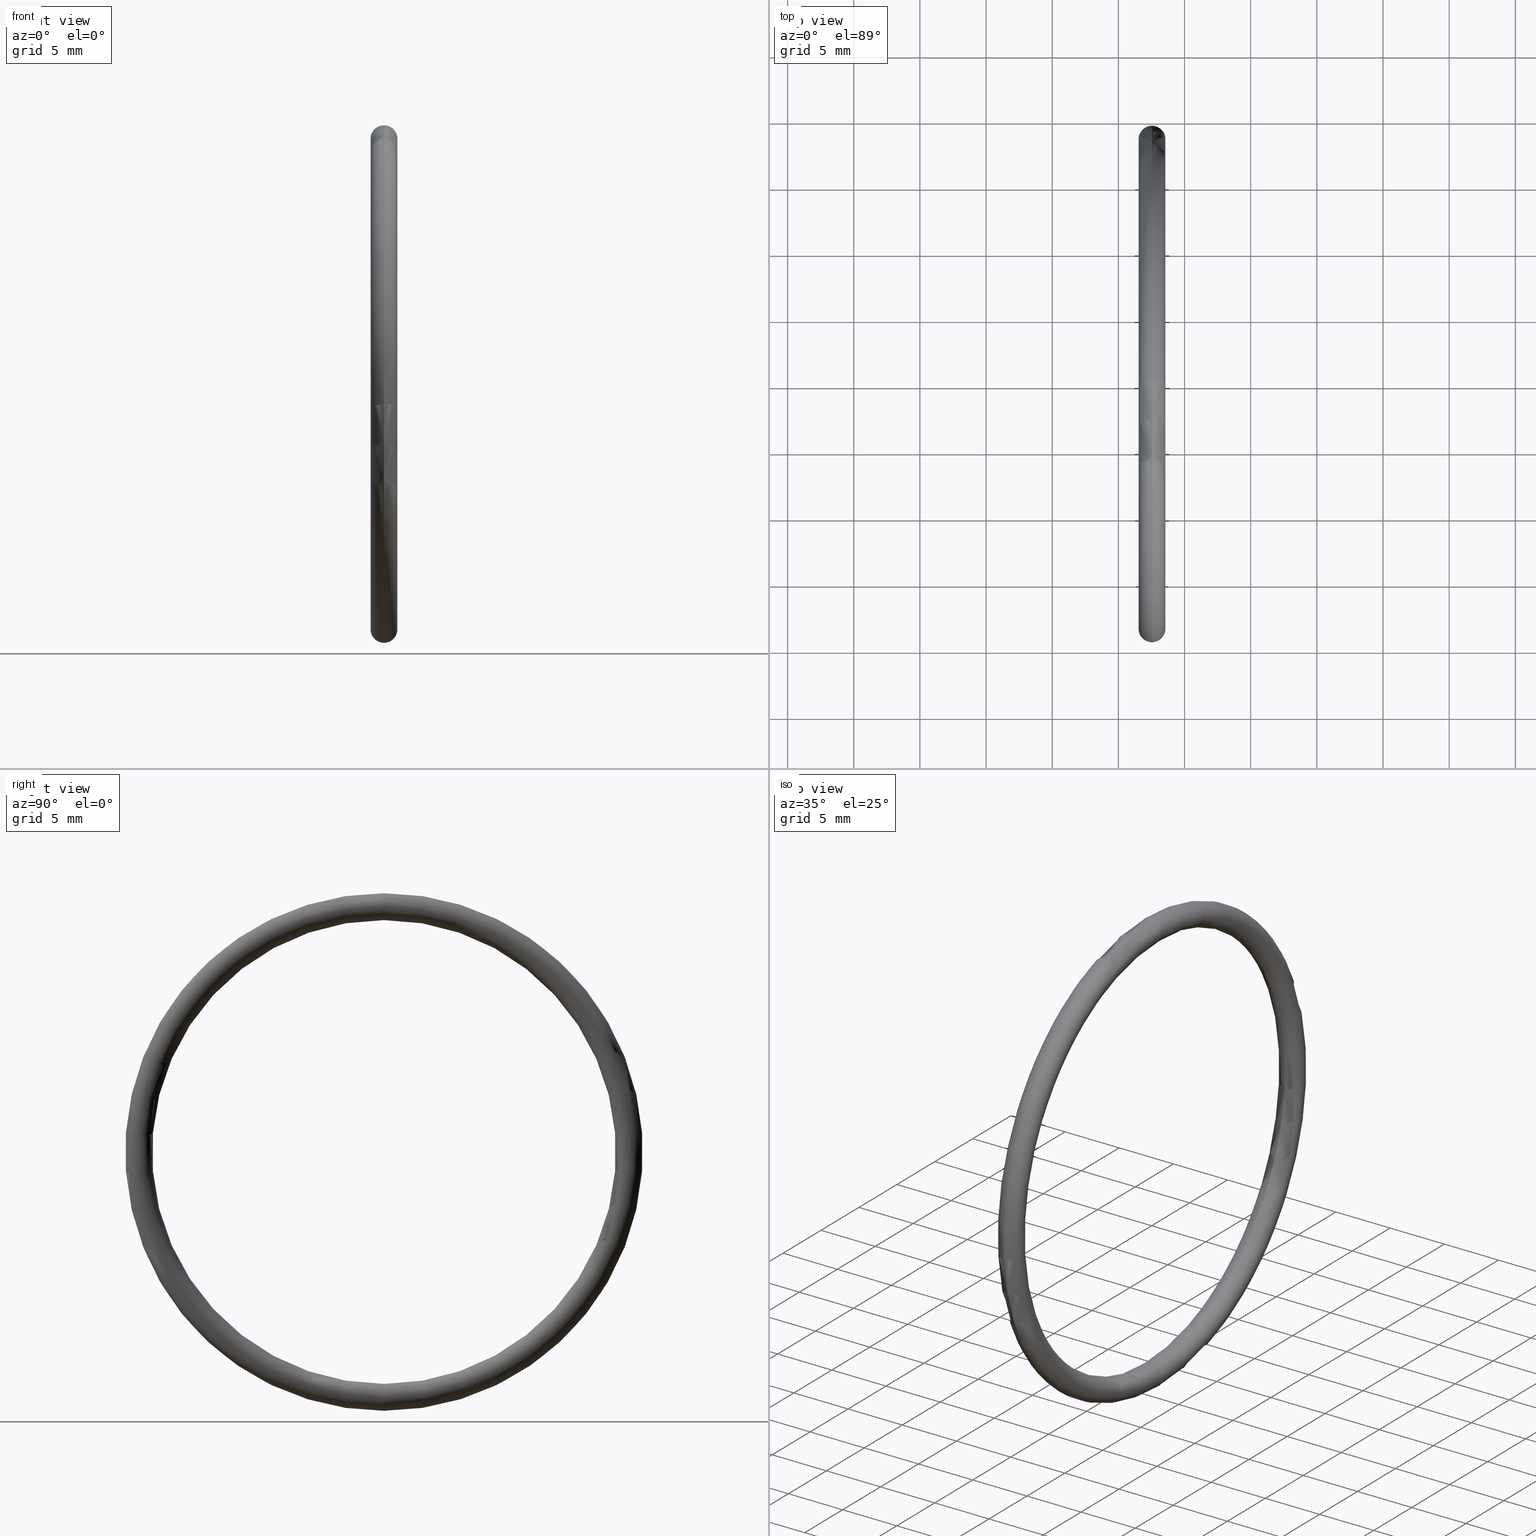
[diagram: canonical four-view strip — front | top / right | iso, engineering-drawing reading convention]
A machine part, canonical four-view strip (front | top / right | iso — engineering-drawing reading convention). The complete STEP part file that produces these views, byte-faithful:
ISO-10303-21;
HEADER;
FILE_DESCRIPTION (( 'STEP AP203' ),
    '1' );
FILE_NAME ('OM-40-BN.STEP',
    '2008-03-29T08:05:04',
    ( 'Baystate-05' ),
    ( 'BayState InfoTech' ),
    'SwSTEP 2.0',
    'SolidWorks 2007',
    '' );
FILE_SCHEMA (( 'CONFIG_CONTROL_DESIGN' ));
ENDSEC;

DATA;
#1 = ADVANCED_FACE ( 'NONE', ( #38 ), #40, .T. ) ;
#2 = EDGE_LOOP ( 'NONE', ( #16, #5, #7, #4 ) ) ;
#3 = CLOSED_SHELL ( 'NONE', ( #29, #30, #24, #1 ) ) ;
#4 = ORIENTED_EDGE ( 'NONE', *, *, #15, .T. ) ;
#5 = ORIENTED_EDGE ( 'NONE', *, *, #17, .F. ) ;
#6 = EDGE_LOOP ( 'NONE', ( #13, #12, #36, #31 ) ) ;
#7 = ORIENTED_EDGE ( 'NONE', *, *, #32, .T. ) ;
#8 = VERTEX_POINT ( 'NONE', #41 ) ;
#9 = MANIFOLD_SOLID_BREP ( 'NONE', #3 ) ;
#10 = EDGE_CURVE ( 'NONE', #11, #8, #48, .T. ) ;
#11 = VERTEX_POINT ( 'NONE', #56 ) ;
#12 = ORIENTED_EDGE ( 'NONE', *, *, #35, .T. ) ;
#13 = ORIENTED_EDGE ( 'NONE', *, *, #10, .F. ) ;
#14 = ORIENTED_EDGE ( 'NONE', *, *, #15, .F. ) ;
#15 = EDGE_CURVE ( 'NONE', #28, #37, #54, .T. ) ;
#16 = ORIENTED_EDGE ( 'NONE', *, *, #35, .F. ) ;
#17 = EDGE_CURVE ( 'NONE', #8, #11, #61, .T. ) ;
#18 = ORIENTED_EDGE ( 'NONE', *, *, #17, .T. ) ;
#19 = ORIENTED_EDGE ( 'NONE', *, *, #23, .T. ) ;
#20 = ORIENTED_EDGE ( 'NONE', *, *, #33, .F. ) ;
#21 = EDGE_LOOP ( 'NONE', ( #20, #14, #19, #18 ) ) ;
#22 = ORIENTED_EDGE ( 'NONE', *, *, #23, .F. ) ;
#23 = EDGE_CURVE ( 'NONE', #28, #8, #184, .T. ) ;
#24 = ADVANCED_FACE ( 'NONE', ( #189 ), #79, .T. ) ;
#25 = ORIENTED_EDGE ( 'NONE', *, *, #27, .F. ) ;
#26 = EDGE_LOOP ( 'NONE', ( #25, #39, #34, #22 ) ) ;
#27 = EDGE_CURVE ( 'NONE', #37, #28, #113, .T. ) ;
#28 = VERTEX_POINT ( 'NONE', #192 ) ;
#29 = ADVANCED_FACE ( 'NONE', ( #191 ), #101, .T. ) ;
#30 = ADVANCED_FACE ( 'NONE', ( #82 ), #80, .T. ) ;
#31 = ORIENTED_EDGE ( 'NONE', *, *, #32, .F. ) ;
#32 = EDGE_CURVE ( 'NONE', #8, #28, #92, .T. ) ;
#33 = EDGE_CURVE ( 'NONE', #37, #11, #110, .T. ) ;
#34 = ORIENTED_EDGE ( 'NONE', *, *, #10, .T. ) ;
#35 = EDGE_CURVE ( 'NONE', #11, #37, #105, .T. ) ;
#36 = ORIENTED_EDGE ( 'NONE', *, *, #27, .T. ) ;
#37 = VERTEX_POINT ( 'NONE', #94 ) ;
#38 = FACE_OUTER_BOUND ( 'NONE', #2, .T. ) ;
#39 = ORIENTED_EDGE ( 'NONE', *, *, #33, .T. ) ;
#40 = TOROIDAL_SURFACE ( 'NONE', #44, 0.7299999999999998700, 0.03999999999999997300 ) ;
#41 = CARTESIAN_POINT ( 'NONE',  ( 0.1000000000000000900, 8.450062914116736900E-017, -0.6899999999999998400 ) ) ;
#42 = DIRECTION ( 'NONE',  ( 0.0000000000000000000, 0.0000000000000000000, 1.000000000000000000 ) ) ;
#43 = DIRECTION ( 'NONE',  ( -1.000000000000000000, 0.0000000000000000000, 0.0000000000000000000 ) ) ;
#44 = AXIS2_PLACEMENT_3D ( 'NONE', #45, #43, #42 ) ;
#45 = CARTESIAN_POINT ( 'NONE',  ( 0.1000000000000000900, 0.0000000000000000000, 0.0000000000000000000 ) ) ;
#46 = CARTESIAN_POINT ( 'NONE',  ( 0.1000000000000000900, 8.939921633775677100E-017, -0.7299999999999998700 ) ) ;
#47 = AXIS2_PLACEMENT_3D ( 'NONE', #46, #49, #57 ) ;
#48 = CIRCLE ( 'NONE', #47, 0.03999999999999998000 ) ;
#49 = DIRECTION ( 'NONE',  ( 0.0000000000000000000, 1.000000000000000000, 1.224646799147353200E-016 ) ) ;
#50 = DIRECTION ( 'NONE',  ( 0.0000000000000000000, -1.224646799147351000E-016, 1.000000000000000000 ) ) ;
#51 = DIRECTION ( 'NONE',  ( 0.0000000000000000000, 1.000000000000000000, 1.224646799147353200E-016 ) ) ;
#52 = AXIS2_PLACEMENT_3D ( 'NONE', #60, #51, #50 ) ;
#53 = AXIS2_PLACEMENT_3D ( 'NONE', #55, #59, #58 ) ;
#54 = CIRCLE ( 'NONE', #53, 0.03999999999999998000 ) ;
#55 = CARTESIAN_POINT ( 'NONE',  ( 0.1000000000000000900, 0.0000000000000000000, 0.7299999999999998700 ) ) ;
#56 = CARTESIAN_POINT ( 'NONE',  ( 0.1000000000000000900, 9.429780353434617300E-017, -0.7699999999999996800 ) ) ;
#57 = DIRECTION ( 'NONE',  ( 0.0000000000000000000, -1.224646799147351000E-016, 1.000000000000000000 ) ) ;
#58 = DIRECTION ( 'NONE',  ( 0.0000000000000000000, 0.0000000000000000000, -1.000000000000000000 ) ) ;
#59 = DIRECTION ( 'NONE',  ( 0.0000000000000000000, -1.000000000000000000, 0.0000000000000000000 ) ) ;
#60 = CARTESIAN_POINT ( 'NONE',  ( 0.1000000000000000900, 8.939921633775677100E-017, -0.7299999999999998700 ) ) ;
#61 = CIRCLE ( 'NONE', #52, 0.03999999999999998000 ) ;
#62 = CC_DESIGN_DATE_AND_TIME_ASSIGNMENT ( #64, #63, ( #123 ) ) ;
#63 = DATE_TIME_ROLE ( 'creation_date' ) ;
#64 = DATE_AND_TIME ( #65, #66 ) ;
#65 = CALENDAR_DATE ( 2008, 29, 3 ) ;
#66 = LOCAL_TIME ( 13, 35, 4.000000000000000000, #67 ) ;
#67 = COORDINATED_UNIVERSAL_TIME_OFFSET ( 5, 30, .AHEAD. ) ;
#68 = CC_DESIGN_PERSON_AND_ORGANIZATION_ASSIGNMENT ( #70, #69, ( #123 ) ) ;
#69 = PERSON_AND_ORGANIZATION_ROLE ( 'creator' ) ;
#70 = PERSON_AND_ORGANIZATION ( #131, #130 ) ;
#71 = CC_DESIGN_APPROVAL ( #120, ( #123 ) ) ;
#72 = APPROVAL_DATE_TIME ( #73, #120 ) ;
#73 = DATE_AND_TIME ( #74, #75 ) ;
#74 = CALENDAR_DATE ( 2008, 29, 3 ) ;
#75 = LOCAL_TIME ( 13, 35, 4.000000000000000000, #76 ) ;
#76 = COORDINATED_UNIVERSAL_TIME_OFFSET ( 5, 30, .AHEAD. ) ;
#77 = APPROVAL_PERSON_ORGANIZATION ( #122, #120, #78 ) ;
#78 = APPROVAL_ROLE ( '' ) ;
#79 = TOROIDAL_SURFACE ( 'NONE', #119, 0.7299999999999998700, 0.03999999999999997300 ) ;
#80 = TOROIDAL_SURFACE ( 'NONE', #81, 0.7299999999999998700, 0.03999999999999997300 ) ;
#81 = AXIS2_PLACEMENT_3D ( 'NONE', #87, #86, #85 ) ;
#82 = FACE_OUTER_BOUND ( 'NONE', #26, .T. ) ;
#83 = DIRECTION ( 'NONE',  ( 0.0000000000000000000, 0.0000000000000000000, 1.000000000000000000 ) ) ;
#84 = DIRECTION ( 'NONE',  ( 0.0000000000000000000, 0.0000000000000000000, 1.000000000000000000 ) ) ;
#85 = DIRECTION ( 'NONE',  ( 0.0000000000000000000, 0.0000000000000000000, 1.000000000000000000 ) ) ;
#86 = DIRECTION ( 'NONE',  ( -1.000000000000000000, 0.0000000000000000000, 0.0000000000000000000 ) ) ;
#87 = CARTESIAN_POINT ( 'NONE',  ( 0.1000000000000000900, 0.0000000000000000000, 0.0000000000000000000 ) ) ;
#88 = DIRECTION ( 'NONE',  ( 0.0000000000000000000, 0.0000000000000000000, 1.000000000000000000 ) ) ;
#89 = DIRECTION ( 'NONE',  ( -1.000000000000000000, 0.0000000000000000000, 0.0000000000000000000 ) ) ;
#90 = CARTESIAN_POINT ( 'NONE',  ( 0.1000000000000000900, 0.0000000000000000000, 0.0000000000000000000 ) ) ;
#91 = AXIS2_PLACEMENT_3D ( 'NONE', #90, #89, #88 ) ;
#92 = CIRCLE ( 'NONE', #91, 0.6899999999999998400 ) ;
#93 = CARTESIAN_POINT ( 'NONE',  ( 0.0000000000000000000, 0.0000000000000000000, 0.0000000000000000000 ) ) ;
#94 = CARTESIAN_POINT ( 'NONE',  ( 0.1000000000000000900, 0.0000000000000000000, 0.7699999999999996800 ) ) ;
#95 = DIRECTION ( 'NONE',  ( 0.0000000000000000000, 0.0000000000000000000, 1.000000000000000000 ) ) ;
#96 = DIRECTION ( 'NONE',  ( -1.000000000000000000, 0.0000000000000000000, 0.0000000000000000000 ) ) ;
#97 = CARTESIAN_POINT ( 'NONE',  ( 0.1000000000000000900, 0.0000000000000000000, 0.0000000000000000000 ) ) ;
#98 = AXIS2_PLACEMENT_3D ( 'NONE', #97, #96, #95 ) ;
#99 = DIRECTION ( 'NONE',  ( -1.000000000000000000, 0.0000000000000000000, 0.0000000000000000000 ) ) ;
#100 = AXIS2_PLACEMENT_3D ( 'NONE', #190, #99, #83 ) ;
#101 = TOROIDAL_SURFACE ( 'NONE', #100, 0.7299999999999998700, 0.03999999999999997300 ) ;
#102 = CARTESIAN_POINT ( 'NONE',  ( 0.1000000000000000900, 0.0000000000000000000, 0.7299999999999998700 ) ) ;
#103 = DIRECTION ( 'NONE',  ( 0.0000000000000000000, 0.0000000000000000000, 1.000000000000000000 ) ) ;
#104 = DIRECTION ( 'NONE',  ( -1.000000000000000000, 0.0000000000000000000, 0.0000000000000000000 ) ) ;
#105 = CIRCLE ( 'NONE', #98, 0.7699999999999998000 ) ;
#106 = DIRECTION ( 'NONE',  ( 0.0000000000000000000, 0.0000000000000000000, 1.000000000000000000 ) ) ;
#107 = DIRECTION ( 'NONE',  ( -1.000000000000000000, 0.0000000000000000000, 0.0000000000000000000 ) ) ;
#108 = CARTESIAN_POINT ( 'NONE',  ( 0.1000000000000000900, 0.0000000000000000000, 0.0000000000000000000 ) ) ;
#109 = AXIS2_PLACEMENT_3D ( 'NONE', #108, #107, #106 ) ;
#110 = CIRCLE ( 'NONE', #109, 0.7699999999999998000 ) ;
#111 = DIRECTION ( 'NONE',  ( 0.0000000000000000000, -1.000000000000000000, 0.0000000000000000000 ) ) ;
#112 = AXIS2_PLACEMENT_3D ( 'NONE', #102, #111, #193 ) ;
#113 = CIRCLE ( 'NONE', #112, 0.03999999999999998000 ) ;
#114 = SHAPE_DEFINITION_REPRESENTATION ( #179, #115 ) ;
#115 = ADVANCED_BREP_SHAPE_REPRESENTATION ( 'OM-40-BN', ( #9, #187 ), #116 ) ;
#116 =( GEOMETRIC_REPRESENTATION_CONTEXT ( 3 ) GLOBAL_UNCERTAINTY_ASSIGNED_CONTEXT ( ( #181 ) ) GLOBAL_UNIT_ASSIGNED_CONTEXT ( ( #174, #183, #182 ) ) REPRESENTATION_CONTEXT ( 'NONE', 'WORKASPACE' ) );
#117 = AXIS2_PLACEMENT_3D ( 'NONE', #178, #104, #84 ) ;
#118 = DIRECTION ( 'NONE',  ( -1.000000000000000000, 0.0000000000000000000, 0.0000000000000000000 ) ) ;
#119 = AXIS2_PLACEMENT_3D ( 'NONE', #188, #118, #103 ) ;
#120 = APPROVAL ( #121, 'UNSPECIFIED' ) ;
#121 = APPROVAL_STATUS ( 'not_yet_approved' ) ;
#122 = PERSON_AND_ORGANIZATION ( #131, #130 ) ;
#123 = PRODUCT_DEFINITION ( 'UNKNOWN', '', #173, #124 ) ;
#124 = DESIGN_CONTEXT ( 'detailed design', #126, 'design' ) ;
#125 = APPLICATION_PROTOCOL_DEFINITION ( 'international standard', 'config_control_design', 1994, #126 ) ;
#126 = APPLICATION_CONTEXT ( 'configuration controlled 3d designs of mechanical parts and assemblies' ) ;
#127 = CC_DESIGN_PERSON_AND_ORGANIZATION_ASSIGNMENT ( #129, #128, ( #132 ) ) ;
#128 = PERSON_AND_ORGANIZATION_ROLE ( 'design_owner' ) ;
#129 = PERSON_AND_ORGANIZATION ( #131, #130 ) ;
#130 = ORGANIZATION ( 'UNSPECIFIED', 'UNSPECIFIED', '' ) ;
#131 = PERSON ( 'UNSPECIFIED', 'UNSPECIFIED', 'UNSPECIFIED', ('UNSPECIFIED'), ('UNSPECIFIED'), ('UNSPECIFIED') ) ;
#132 = PRODUCT ( 'OM-40-BN', 'OM-40-BN', '', ( #194 ) ) ;
#133 = CC_DESIGN_SECURITY_CLASSIFICATION ( #154, ( #173 ) ) ;
#134 = CC_DESIGN_APPROVAL ( #142, ( #154 ) ) ;
#135 = APPROVAL_DATE_TIME ( #136, #142 ) ;
#136 = DATE_AND_TIME ( #137, #138 ) ;
#137 = CALENDAR_DATE ( 2008, 29, 3 ) ;
#138 = LOCAL_TIME ( 13, 35, 4.000000000000000000, #139 ) ;
#139 = COORDINATED_UNIVERSAL_TIME_OFFSET ( 5, 30, .AHEAD. ) ;
#140 = APPROVAL_PERSON_ORGANIZATION ( #144, #142, #141 ) ;
#141 = APPROVAL_ROLE ( '' ) ;
#142 = APPROVAL ( #143, 'UNSPECIFIED' ) ;
#143 = APPROVAL_STATUS ( 'not_yet_approved' ) ;
#144 = PERSON_AND_ORGANIZATION ( #131, #130 ) ;
#145 = CC_DESIGN_DATE_AND_TIME_ASSIGNMENT ( #147, #146, ( #154 ) ) ;
#146 = DATE_TIME_ROLE ( 'classification_date' ) ;
#147 = DATE_AND_TIME ( #148, #149 ) ;
#148 = CALENDAR_DATE ( 2008, 29, 3 ) ;
#149 = LOCAL_TIME ( 13, 35, 4.000000000000000000, #150 ) ;
#150 = COORDINATED_UNIVERSAL_TIME_OFFSET ( 5, 30, .AHEAD. ) ;
#151 = CC_DESIGN_PERSON_AND_ORGANIZATION_ASSIGNMENT ( #153, #152, ( #154 ) ) ;
#152 = PERSON_AND_ORGANIZATION_ROLE ( 'classification_officer' ) ;
#153 = PERSON_AND_ORGANIZATION ( #131, #130 ) ;
#154 = SECURITY_CLASSIFICATION ( '', '', #155 ) ;
#155 = SECURITY_CLASSIFICATION_LEVEL ( 'unclassified' ) ;
#156 = CC_DESIGN_PERSON_AND_ORGANIZATION_ASSIGNMENT ( #158, #157, ( #173 ) ) ;
#157 = PERSON_AND_ORGANIZATION_ROLE ( 'design_supplier' ) ;
#158 = PERSON_AND_ORGANIZATION ( #131, #130 ) ;
#159 = CC_DESIGN_PERSON_AND_ORGANIZATION_ASSIGNMENT ( #161, #160, ( #173 ) ) ;
#160 = PERSON_AND_ORGANIZATION_ROLE ( 'creator' ) ;
#161 = PERSON_AND_ORGANIZATION ( #131, #130 ) ;
#162 = CC_DESIGN_APPROVAL ( #170, ( #173 ) ) ;
#163 = APPROVAL_DATE_TIME ( #164, #170 ) ;
#164 = DATE_AND_TIME ( #165, #166 ) ;
#165 = CALENDAR_DATE ( 2008, 29, 3 ) ;
#166 = LOCAL_TIME ( 13, 35, 4.000000000000000000, #167 ) ;
#167 = COORDINATED_UNIVERSAL_TIME_OFFSET ( 5, 30, .AHEAD. ) ;
#168 = APPROVAL_PERSON_ORGANIZATION ( #172, #170, #169 ) ;
#169 = APPROVAL_ROLE ( '' ) ;
#170 = APPROVAL ( #171, 'UNSPECIFIED' ) ;
#171 = APPROVAL_STATUS ( 'not_yet_approved' ) ;
#172 = PERSON_AND_ORGANIZATION ( #131, #130 ) ;
#173 = PRODUCT_DEFINITION_FORMATION_WITH_SPECIFIED_SOURCE ( 'ANY', '', #132, .NOT_KNOWN. ) ;
#174 =( CONVERSION_BASED_UNIT ( 'INCH', #175 ) LENGTH_UNIT ( ) NAMED_UNIT ( #176 ) );
#175 = LENGTH_MEASURE_WITH_UNIT ( LENGTH_MEASURE( 0.02539999999999999900 ), #177 );
#176 = DIMENSIONAL_EXPONENTS ( 1.000000000000000000, 0.0000000000000000000, 0.0000000000000000000, 0.0000000000000000000, 0.0000000000000000000, 0.0000000000000000000, 0.0000000000000000000 ) ;
#177 =( LENGTH_UNIT ( ) NAMED_UNIT ( * ) SI_UNIT ( $, .METRE. ) );
#178 = CARTESIAN_POINT ( 'NONE',  ( 0.1000000000000000900, 0.0000000000000000000, 0.0000000000000000000 ) ) ;
#179 = PRODUCT_DEFINITION_SHAPE ( 'NONE', 'NONE',  #123 ) ;
#180 = PRODUCT_RELATED_PRODUCT_CATEGORY ( 'detail', '', ( #132 ) ) ;
#181 = UNCERTAINTY_MEASURE_WITH_UNIT (LENGTH_MEASURE( 1.000000000000000100E-005 ), #174, 'distance_accuracy_value', 'NONE');
#182 =( NAMED_UNIT ( * ) SI_UNIT ( $, .STERADIAN. ) SOLID_ANGLE_UNIT ( ) );
#183 =( NAMED_UNIT ( * ) PLANE_ANGLE_UNIT ( ) SI_UNIT ( $, .RADIAN. ) );
#184 = CIRCLE ( 'NONE', #117, 0.6899999999999998400 ) ;
#185 = DIRECTION ( 'NONE',  ( 1.000000000000000000, 0.0000000000000000000, 0.0000000000000000000 ) ) ;
#186 = DIRECTION ( 'NONE',  ( 0.0000000000000000000, 0.0000000000000000000, 1.000000000000000000 ) ) ;
#187 = AXIS2_PLACEMENT_3D ( 'NONE', #93, #186, #185 ) ;
#188 = CARTESIAN_POINT ( 'NONE',  ( 0.1000000000000000900, 0.0000000000000000000, 0.0000000000000000000 ) ) ;
#189 = FACE_OUTER_BOUND ( 'NONE', #21, .T. ) ;
#190 = CARTESIAN_POINT ( 'NONE',  ( 0.1000000000000000900, 0.0000000000000000000, 0.0000000000000000000 ) ) ;
#191 = FACE_OUTER_BOUND ( 'NONE', #6, .T. ) ;
#192 = CARTESIAN_POINT ( 'NONE',  ( 0.1000000000000000900, 0.0000000000000000000, 0.6899999999999998400 ) ) ;
#193 = DIRECTION ( 'NONE',  ( 0.0000000000000000000, 0.0000000000000000000, -1.000000000000000000 ) ) ;
#194 = MECHANICAL_CONTEXT ( 'NONE', #196, 'mechanical' ) ;
#195 = APPLICATION_PROTOCOL_DEFINITION ( 'international standard', 'config_control_design', 1994, #196 ) ;
#196 = APPLICATION_CONTEXT ( 'configuration controlled 3d designs of mechanical parts and assemblies' ) ;
ENDSEC;
END-ISO-10303-21;
